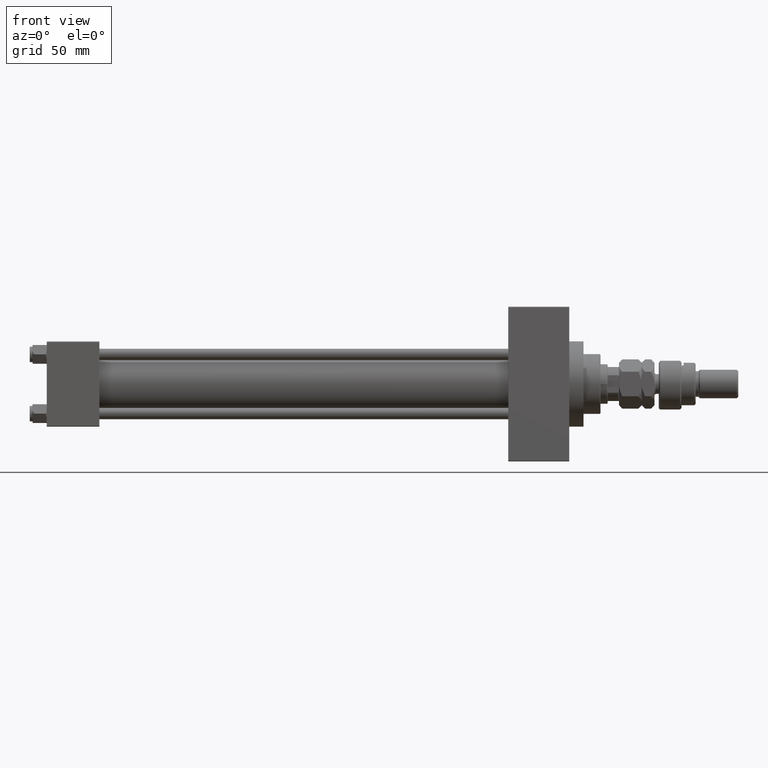
[diagram: clean part render]
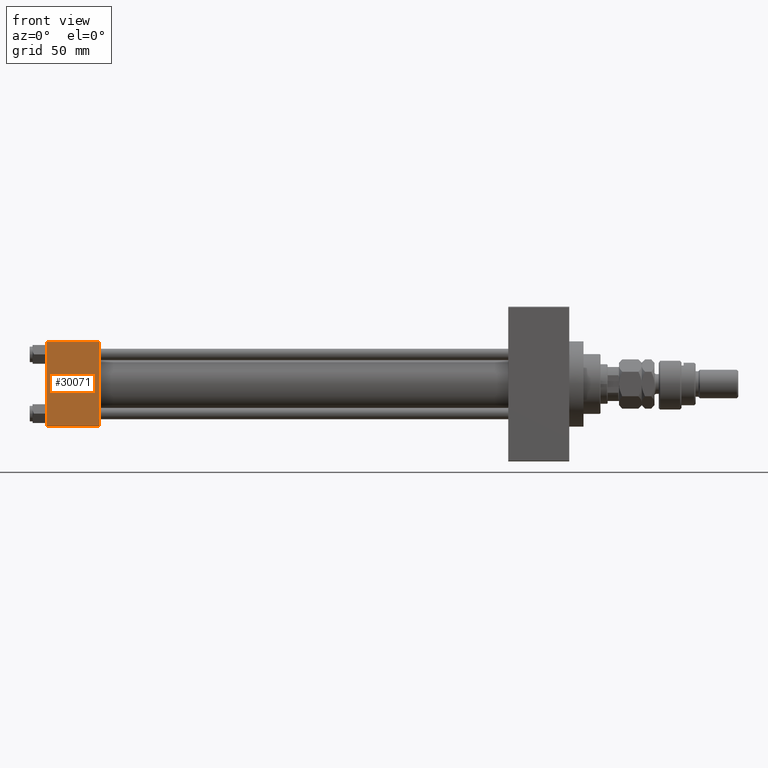
[diagram: same view with one face highlighted and labeled with its STEP entity id]
A machine part, front view. The second image highlights one B-rep face of the part: STEP entity #30071.
In plain terms, the highlighted planar face has unit normal (0, 1, 0).
Its self-contained STEP definition (entity closure, byte-faithful):
#55 = VERTEX_POINT ( 'NONE', #46013 ) ;
#2459 = LINE ( 'NONE', #27218, #34818 ) ;
#3149 = DIRECTION ( 'NONE',  ( 1.000000000000000000, 0.000000000000000000, 0.000000000000000000 ) ) ;
#6230 = CARTESIAN_POINT ( 'NONE',  ( 37.00000000000000000, -30.00000000000000000, 29.99999999999999289 ) ) ;
#11039 = CARTESIAN_POINT ( 'NONE',  ( 37.00000000000000000, -30.00000000000000000, 29.99999999999999289 ) ) ;
#11823 = LINE ( 'NONE', #51378, #43732 ) ;
#12492 = LINE ( 'NONE', #28539, #48468 ) ;
#13513 = CARTESIAN_POINT ( 'NONE',  ( 0.000000000000000000, -30.00000000000000000, -29.50000000000001776 ) ) ;
#13525 = CARTESIAN_POINT ( 'NONE',  ( 0.000000000000000000, -30.00000000000000000, 29.49999999999999289 ) ) ;
#13959 = EDGE_CURVE ( 'NONE', #55, #44537, #31064, .T. ) ;
#14852 = DIRECTION ( 'NONE',  ( -1.000000000000000000, 0.000000000000000000, 0.000000000000000000 ) ) ;
#17205 = EDGE_CURVE ( 'NONE', #23359, #44537, #11823, .T. ) ;
#18081 = FACE_OUTER_BOUND ( 'NONE', #19057, .T. ) ;
#18592 = DIRECTION ( 'NONE',  ( 0.000000000000000000, -0.000000000000000000, 1.000000000000000000 ) ) ;
#19056 = ORIENTED_EDGE ( 'NONE', *, *, #17205, .T. ) ;
#19057 = EDGE_LOOP ( 'NONE', ( #30384, #19056, #43497, #28827 ) ) ;
#23359 = VERTEX_POINT ( 'NONE', #13513 ) ;
#25100 = VECTOR ( 'NONE', #38704, 1000.000000000000000 ) ;
#27218 = CARTESIAN_POINT ( 'NONE',  ( 37.00000000000000000, -30.00000000000000000, 29.49999999999999289 ) ) ;
#27916 = VERTEX_POINT ( 'NONE', #13525 ) ;
#28539 = CARTESIAN_POINT ( 'NONE',  ( 0.000000000000000000, -30.00000000000000000, 29.99999999999999289 ) ) ;
#28827 = ORIENTED_EDGE ( 'NONE', *, *, #29456, .T. ) ;
#29456 = EDGE_CURVE ( 'NONE', #55, #27916, #2459, .T. ) ;
#30071 = ADVANCED_FACE ( 'NONE', ( #18081 ), #46278, .F. ) ;
#30384 = ORIENTED_EDGE ( 'NONE', *, *, #51215, .T. ) ;
#31064 = LINE ( 'NONE', #11039, #25100 ) ;
#34720 = CARTESIAN_POINT ( 'NONE',  ( 37.00000000000000000, -30.00000000000000000, -29.50000000000001776 ) ) ;
#34818 = VECTOR ( 'NONE', #14852, 1000.000000000000000 ) ;
#38704 = DIRECTION ( 'NONE',  ( 0.000000000000000000, 0.000000000000000000, -1.000000000000000000 ) ) ;
#43497 = ORIENTED_EDGE ( 'NONE', *, *, #13959, .F. ) ;
#43732 = VECTOR ( 'NONE', #3149, 1000.000000000000000 ) ;
#44537 = VERTEX_POINT ( 'NONE', #34720 ) ;
#46013 = CARTESIAN_POINT ( 'NONE',  ( 37.00000000000000000, -30.00000000000000000, 29.49999999999999289 ) ) ;
#46278 = PLANE ( 'NONE',  #51688 ) ;
#47855 = DIRECTION ( 'NONE',  ( -0.000000000000000000, 1.000000000000000000, 0.000000000000000000 ) ) ;
#48468 = VECTOR ( 'NONE', #51788, 1000.000000000000000 ) ;
#51215 = EDGE_CURVE ( 'NONE', #27916, #23359, #12492, .T. ) ;
#51378 = CARTESIAN_POINT ( 'NONE',  ( 37.00000000000000000, -30.00000000000000000, -29.50000000000001776 ) ) ;
#51688 = AXIS2_PLACEMENT_3D ( 'NONE', #6230, #47855, #18592 ) ;
#51788 = DIRECTION ( 'NONE',  ( 0.000000000000000000, 0.000000000000000000, -1.000000000000000000 ) ) ;